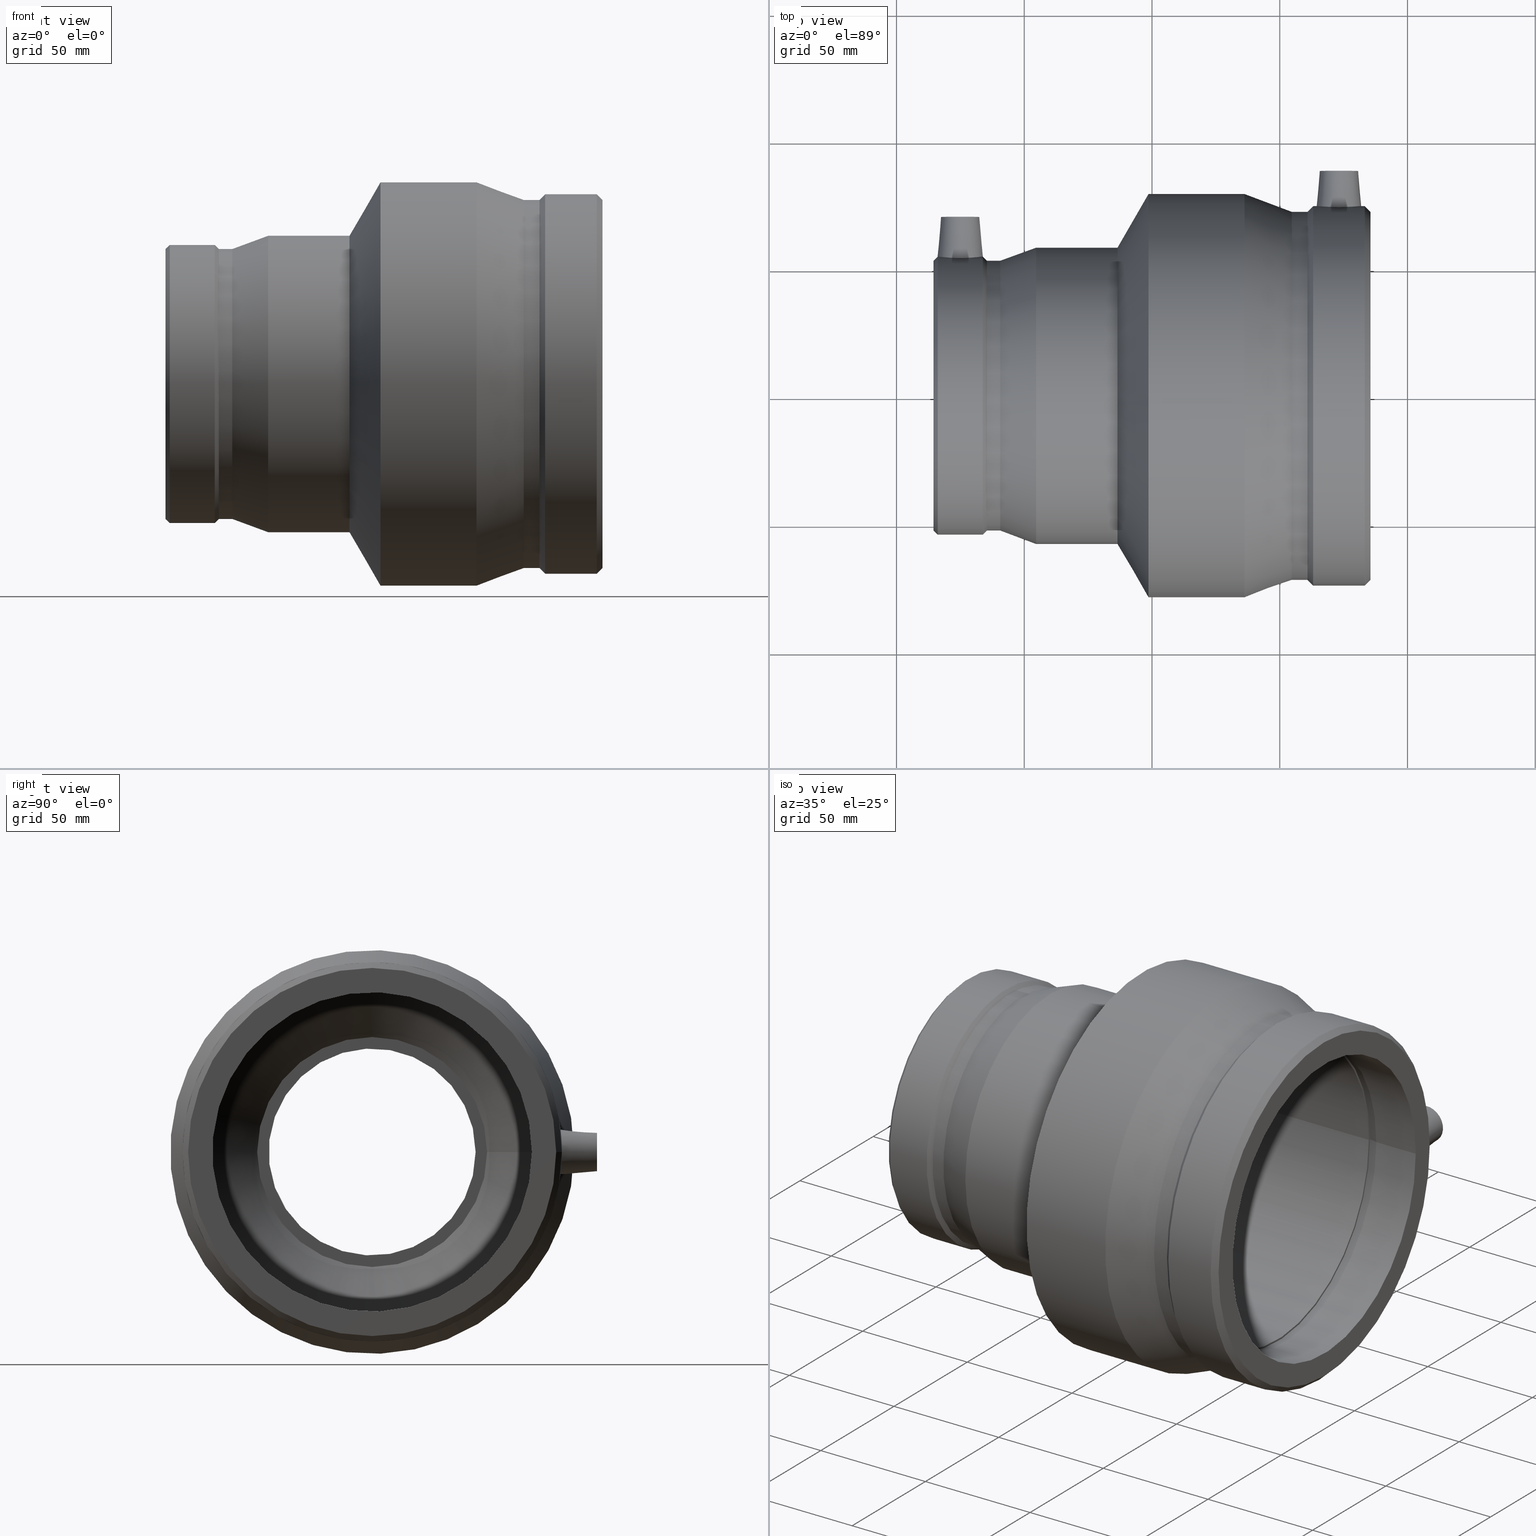
[diagram: canonical four-view strip — front | top / right | iso, engineering-drawing reading convention]
A machine part, canonical four-view strip (front | top / right | iso — engineering-drawing reading convention). The complete STEP part file that produces these views, byte-faithful:
ISO-10303-21;
HEADER;
/* Generated by software containing ST-Developer
 * from STEP Tools, Inc. (www.steptools.com) 
 */

FILE_DESCRIPTION(
/* description */ ('PLASSON REDUCING COUPLER 125-90'),
/* implementation_level */ '2;1');

FILE_NAME(
/* name */ 
'C:\\Dropbox\\KIMPROJECTS-Inventor\\99-16-3568-Processing\\ElectroFusi
on Fittings\\491104\\491104125090.ipt.stp',
/* time_stamp */ '2017-11-06T09:12:43+02:00',
/* author */ ('KIM'),
/* organization */ (''),
/* preprocessor_version */ 'ST-DEVELOPER v15.6',
/* originating_system */ 'Autodesk Inventor 2015',
/* authorisation */ '');

FILE_SCHEMA (('AUTOMOTIVE_DESIGN { 1 0 10303 214 3 1 1 }'));
ENDSEC;

DATA;
#10=MECHANICAL_DESIGN_GEOMETRIC_PRESENTATION_REPRESENTATION('',(#13),#888);
#11=SHAPE_REPRESENTATION_RELATIONSHIP('SRR','None',#897,#12);
#12=ADVANCED_BREP_SHAPE_REPRESENTATION($,(#14),#887);
#13=STYLED_ITEM('',(#906),#14);
#14=MANIFOLD_SOLID_BREP('Solid1',#453);
#15=B_SPLINE_CURVE_WITH_KNOTS('',3,(#706,#707,#708,#709,#710,#711,#712,
#713,#714,#715,#716,#717,#718,#719,#720,#721,#722,#723,#724,#725,#726,#727,
#728,#729,#730,#731,#732,#733,#734,#735,#736,#737,#738,#739),
 .UNSPECIFIED.,.T.,.F.,(4,2,2,2,2,2,2,2,2,2,2,2,2,2,2,2,4),(0.,0.329174991896132,
0.658349983792263,0.987130054518636,1.31591012524501,1.64469019597138,1.97347026669776,
2.30264525859389,2.63182025049002,2.96099524238615,3.29017023428228,3.61895030500865,
3.94773037573503,4.2765104464614,4.60529051718777,4.93446550908391,5.26364050098004),
 .UNSPECIFIED.);
#16=B_SPLINE_CURVE_WITH_KNOTS('',3,(#755,#756,#757,#758,#759,#760),
 .UNSPECIFIED.,.F.,.F.,(4,2,4),(1.69213413303802,1.78559538917749,1.87905664531697),
 .UNSPECIFIED.);
#17=B_SPLINE_CURVE_WITH_KNOTS('',3,(#762,#763,#764,#765,#766,#767,#768,
#769,#770,#771,#772,#773,#774,#775,#776,#777,#778,#779),.UNSPECIFIED.,.F.,
 .F.,(4,2,2,2,2,2,2,2,4),(1.43476741438058,1.67667653360601,2.01178281055401,
2.34746166193501,2.683140513316,3.01881936469699,3.35449821607798,3.68960449302599,
3.9315136122514),.UNSPECIFIED.);
#18=B_SPLINE_CURVE_WITH_KNOTS('',3,(#781,#782,#783,#784,#785,#786),
 .UNSPECIFIED.,.F.,.F.,(4,2,4),(1.69213413303803,1.78559538917748,1.87905664531694),
 .UNSPECIFIED.);
#19=B_SPLINE_CURVE_WITH_KNOTS('',3,(#787,#788,#789,#790,#791,#792,#793,
#794,#795,#796,#797,#798,#799,#800,#801,#802,#803,#804,#805),
 .UNSPECIFIED.,.F.,.F.,(4,2,2,2,3,2,2,2,4),(4.11790792769659,4.359817046922,
4.69492332387001,5.030602175251,5.36628102663199,5.70195987801298,6.03763872939397,
6.37274500634198,6.61465412556741),.UNSPECIFIED.);
#20=CONICAL_SURFACE('',#467,7.5,5.);
#21=CONICAL_SURFACE('',#476,7.5,5.);
#22=CONICAL_SURFACE('',#477,53.7022,45.0000000000002);
#23=CONICAL_SURFACE('',#483,53.7022,45.);
#24=CONICAL_SURFACE('',#488,55.4422,20.);
#25=CONICAL_SURFACE('',#492,68.5,60.0000000000001);
#26=CONICAL_SURFACE('',#496,75.5161,20.6668482190193);
#27=CONICAL_SURFACE('',#500,73.1461,45.);
#28=CONICAL_SURFACE('',#504,73.1461,45.);
#29=CONICAL_SURFACE('',#510,62.882601811006,12.);
#30=CONICAL_SURFACE('',#516,53.75,59.2775890477132);
#31=CONICAL_SURFACE('',#528,45.382601811006,12.);
#32=FACE_BOUND('',#126,.T.);
#33=FACE_BOUND('',#128,.T.);
#34=FACE_BOUND('',#130,.T.);
#35=FACE_BOUND('',#132,.T.);
#36=FACE_BOUND('',#134,.T.);
#37=FACE_BOUND('',#136,.T.);
#38=FACE_BOUND('',#138,.T.);
#39=FACE_BOUND('',#140,.T.);
#40=FACE_BOUND('',#142,.T.);
#41=FACE_BOUND('',#144,.T.);
#42=FACE_BOUND('',#146,.T.);
#43=FACE_BOUND('',#148,.T.);
#44=FACE_BOUND('',#150,.T.);
#45=FACE_BOUND('',#153,.T.);
#46=FACE_BOUND('',#155,.T.);
#47=FACE_BOUND('',#157,.T.);
#48=FACE_BOUND('',#159,.T.);
#49=FACE_BOUND('',#161,.T.);
#50=FACE_BOUND('',#163,.T.);
#51=FACE_BOUND('',#165,.T.);
#52=FACE_BOUND('',#167,.T.);
#53=FACE_BOUND('',#169,.T.);
#54=FACE_BOUND('',#170,.T.);
#55=FACE_BOUND('',#172,.T.);
#56=FACE_BOUND('',#174,.T.);
#57=FACE_BOUND('',#176,.T.);
#58=FACE_BOUND('',#178,.T.);
#59=FACE_BOUND('',#180,.T.);
#60=FACE_BOUND('',#182,.T.);
#61=FACE_BOUND('',#184,.T.);
#62=FACE_BOUND('',#186,.T.);
#63=FACE_BOUND('',#188,.T.);
#64=FACE_BOUND('',#190,.T.);
#65=FACE_BOUND('',#192,.T.);
#66=FACE_BOUND('',#194,.T.);
#67=FACE_BOUND('',#196,.T.);
#68=FACE_BOUND('',#198,.T.);
#69=CYLINDRICAL_SURFACE('',#459,2.);
#70=CYLINDRICAL_SURFACE('',#461,5.);
#71=CYLINDRICAL_SURFACE('',#468,2.);
#72=CYLINDRICAL_SURFACE('',#470,5.);
#73=CYLINDRICAL_SURFACE('',#485,54.52);
#74=CYLINDRICAL_SURFACE('',#486,52.8844);
#75=CYLINDRICAL_SURFACE('',#490,58.);
#76=CYLINDRICAL_SURFACE('',#494,79.);
#77=CYLINDRICAL_SURFACE('',#498,72.0322);
#78=CYLINDRICAL_SURFACE('',#502,74.26);
#79=CYLINDRICAL_SURFACE('',#508,62.5);
#80=CYLINDRICAL_SURFACE('',#514,62.5);
#81=CYLINDRICAL_SURFACE('',#520,40.5);
#82=CYLINDRICAL_SURFACE('',#524,45.);
#83=CYLINDRICAL_SURFACE('',#530,45.);
#84=FACE_OUTER_BOUND('',#123,.T.);
#85=FACE_OUTER_BOUND('',#124,.T.);
#86=FACE_OUTER_BOUND('',#125,.T.);
#87=FACE_OUTER_BOUND('',#127,.T.);
#88=FACE_OUTER_BOUND('',#129,.T.);
#89=FACE_OUTER_BOUND('',#131,.T.);
#90=FACE_OUTER_BOUND('',#133,.T.);
#91=FACE_OUTER_BOUND('',#135,.T.);
#92=FACE_OUTER_BOUND('',#137,.T.);
#93=FACE_OUTER_BOUND('',#139,.T.);
#94=FACE_OUTER_BOUND('',#141,.T.);
#95=FACE_OUTER_BOUND('',#143,.T.);
#96=FACE_OUTER_BOUND('',#145,.T.);
#97=FACE_OUTER_BOUND('',#147,.T.);
#98=FACE_OUTER_BOUND('',#149,.T.);
#99=FACE_OUTER_BOUND('',#151,.T.);
#100=FACE_OUTER_BOUND('',#152,.T.);
#101=FACE_OUTER_BOUND('',#154,.T.);
#102=FACE_OUTER_BOUND('',#156,.T.);
#103=FACE_OUTER_BOUND('',#158,.T.);
#104=FACE_OUTER_BOUND('',#160,.T.);
#105=FACE_OUTER_BOUND('',#162,.T.);
#106=FACE_OUTER_BOUND('',#164,.T.);
#107=FACE_OUTER_BOUND('',#166,.T.);
#108=FACE_OUTER_BOUND('',#168,.T.);
#109=FACE_OUTER_BOUND('',#171,.T.);
#110=FACE_OUTER_BOUND('',#173,.T.);
#111=FACE_OUTER_BOUND('',#175,.T.);
#112=FACE_OUTER_BOUND('',#177,.T.);
#113=FACE_OUTER_BOUND('',#179,.T.);
#114=FACE_OUTER_BOUND('',#181,.T.);
#115=FACE_OUTER_BOUND('',#183,.T.);
#116=FACE_OUTER_BOUND('',#185,.T.);
#117=FACE_OUTER_BOUND('',#187,.T.);
#118=FACE_OUTER_BOUND('',#189,.T.);
#119=FACE_OUTER_BOUND('',#191,.T.);
#120=FACE_OUTER_BOUND('',#193,.T.);
#121=FACE_OUTER_BOUND('',#195,.T.);
#122=FACE_OUTER_BOUND('',#197,.T.);
#123=EDGE_LOOP('',(#318));
#124=EDGE_LOOP('',(#319));
#125=EDGE_LOOP('',(#320));
#126=EDGE_LOOP('',(#321));
#127=EDGE_LOOP('',(#322));
#128=EDGE_LOOP('',(#323));
#129=EDGE_LOOP('',(#324));
#130=EDGE_LOOP('',(#325));
#131=EDGE_LOOP('',(#326));
#132=EDGE_LOOP('',(#327));
#133=EDGE_LOOP('',(#328));
#134=EDGE_LOOP('',(#329));
#135=EDGE_LOOP('',(#330));
#136=EDGE_LOOP('',(#331));
#137=EDGE_LOOP('',(#332));
#138=EDGE_LOOP('',(#333));
#139=EDGE_LOOP('',(#334));
#140=EDGE_LOOP('',(#335));
#141=EDGE_LOOP('',(#336));
#142=EDGE_LOOP('',(#337));
#143=EDGE_LOOP('',(#338));
#144=EDGE_LOOP('',(#339,#340,#341,#342));
#145=EDGE_LOOP('',(#343));
#146=EDGE_LOOP('',(#344,#345));
#147=EDGE_LOOP('',(#346));
#148=EDGE_LOOP('',(#347));
#149=EDGE_LOOP('',(#348,#349));
#150=EDGE_LOOP('',(#350));
#151=EDGE_LOOP('',(#351,#352,#353,#354));
#152=EDGE_LOOP('',(#355));
#153=EDGE_LOOP('',(#356));
#154=EDGE_LOOP('',(#357));
#155=EDGE_LOOP('',(#358));
#156=EDGE_LOOP('',(#359));
#157=EDGE_LOOP('',(#360));
#158=EDGE_LOOP('',(#361));
#159=EDGE_LOOP('',(#362));
#160=EDGE_LOOP('',(#363));
#161=EDGE_LOOP('',(#364));
#162=EDGE_LOOP('',(#365));
#163=EDGE_LOOP('',(#366));
#164=EDGE_LOOP('',(#367));
#165=EDGE_LOOP('',(#368));
#166=EDGE_LOOP('',(#369));
#167=EDGE_LOOP('',(#370));
#168=EDGE_LOOP('',(#371));
#169=EDGE_LOOP('',(#372));
#170=EDGE_LOOP('',(#373));
#171=EDGE_LOOP('',(#374));
#172=EDGE_LOOP('',(#375));
#173=EDGE_LOOP('',(#376));
#174=EDGE_LOOP('',(#377));
#175=EDGE_LOOP('',(#378));
#176=EDGE_LOOP('',(#379));
#177=EDGE_LOOP('',(#380));
#178=EDGE_LOOP('',(#381));
#179=EDGE_LOOP('',(#382));
#180=EDGE_LOOP('',(#383));
#181=EDGE_LOOP('',(#384));
#182=EDGE_LOOP('',(#385));
#183=EDGE_LOOP('',(#386));
#184=EDGE_LOOP('',(#387));
#185=EDGE_LOOP('',(#388));
#186=EDGE_LOOP('',(#389));
#187=EDGE_LOOP('',(#390));
#188=EDGE_LOOP('',(#391));
#189=EDGE_LOOP('',(#392));
#190=EDGE_LOOP('',(#393));
#191=EDGE_LOOP('',(#394));
#192=EDGE_LOOP('',(#395));
#193=EDGE_LOOP('',(#396));
#194=EDGE_LOOP('',(#397));
#195=EDGE_LOOP('',(#398));
#196=EDGE_LOOP('',(#399));
#197=EDGE_LOOP('',(#400));
#198=EDGE_LOOP('',(#401));
#199=CIRCLE('',#456,2.);
#200=CIRCLE('',#458,2.);
#201=CIRCLE('',#460,2.);
#202=CIRCLE('',#462,5.);
#203=CIRCLE('',#463,5.);
#204=CIRCLE('',#466,7.5);
#205=CIRCLE('',#469,2.);
#206=CIRCLE('',#471,5.);
#207=CIRCLE('',#472,5.);
#208=CIRCLE('',#475,7.5);
#209=CIRCLE('',#478,52.8844);
#210=CIRCLE('',#479,54.52);
#211=CIRCLE('',#481,52.8844);
#212=CIRCLE('',#482,45.);
#213=CIRCLE('',#484,54.52);
#214=CIRCLE('',#487,52.8844);
#215=CIRCLE('',#489,58.);
#216=CIRCLE('',#491,58.);
#217=CIRCLE('',#493,79.);
#218=CIRCLE('',#495,79.);
#219=CIRCLE('',#497,72.0322);
#220=CIRCLE('',#499,72.0322);
#221=CIRCLE('',#501,74.26);
#222=CIRCLE('',#503,74.26);
#223=CIRCLE('',#505,72.0322);
#224=CIRCLE('',#507,62.5);
#225=CIRCLE('',#509,62.5);
#226=CIRCLE('',#511,63.2652036220121);
#227=CIRCLE('',#513,62.5);
#228=CIRCLE('',#515,62.5);
#229=CIRCLE('',#517,45.);
#230=CIRCLE('',#519,40.5);
#231=CIRCLE('',#521,40.5);
#232=CIRCLE('',#523,45.);
#233=CIRCLE('',#525,45.);
#234=CIRCLE('',#527,45.7652036220121);
#235=CIRCLE('',#529,45.);
#236=VERTEX_POINT('',#687);
#237=VERTEX_POINT('',#690);
#238=VERTEX_POINT('',#693);
#239=VERTEX_POINT('',#696);
#240=VERTEX_POINT('',#698);
#241=VERTEX_POINT('',#702);
#242=VERTEX_POINT('',#705);
#243=VERTEX_POINT('',#741);
#244=VERTEX_POINT('',#744);
#245=VERTEX_POINT('',#746);
#246=VERTEX_POINT('',#750);
#247=VERTEX_POINT('',#753);
#248=VERTEX_POINT('',#754);
#249=VERTEX_POINT('',#761);
#250=VERTEX_POINT('',#780);
#251=VERTEX_POINT('',#807);
#252=VERTEX_POINT('',#811);
#253=VERTEX_POINT('',#813);
#254=VERTEX_POINT('',#819);
#255=VERTEX_POINT('',#822);
#256=VERTEX_POINT('',#825);
#257=VERTEX_POINT('',#828);
#258=VERTEX_POINT('',#831);
#259=VERTEX_POINT('',#834);
#260=VERTEX_POINT('',#837);
#261=VERTEX_POINT('',#840);
#262=VERTEX_POINT('',#843);
#263=VERTEX_POINT('',#846);
#264=VERTEX_POINT('',#849);
#265=VERTEX_POINT('',#852);
#266=VERTEX_POINT('',#855);
#267=VERTEX_POINT('',#858);
#268=VERTEX_POINT('',#861);
#269=VERTEX_POINT('',#864);
#270=VERTEX_POINT('',#867);
#271=VERTEX_POINT('',#870);
#272=VERTEX_POINT('',#873);
#273=VERTEX_POINT('',#876);
#274=VERTEX_POINT('',#879);
#275=VERTEX_POINT('',#882);
#276=EDGE_CURVE('',#236,#236,#199,.T.);
#277=EDGE_CURVE('',#237,#237,#200,.T.);
#278=EDGE_CURVE('',#238,#238,#201,.T.);
#279=EDGE_CURVE('',#239,#239,#202,.T.);
#280=EDGE_CURVE('',#240,#240,#203,.T.);
#281=EDGE_CURVE('',#241,#241,#204,.T.);
#282=EDGE_CURVE('',#242,#242,#15,.T.);
#283=EDGE_CURVE('',#243,#243,#205,.T.);
#284=EDGE_CURVE('',#244,#244,#206,.T.);
#285=EDGE_CURVE('',#245,#245,#207,.T.);
#286=EDGE_CURVE('',#246,#246,#208,.T.);
#287=EDGE_CURVE('',#247,#248,#16,.T.);
#288=EDGE_CURVE('',#249,#247,#17,.T.);
#289=EDGE_CURVE('',#250,#249,#18,.T.);
#290=EDGE_CURVE('',#248,#250,#19,.T.);
#291=EDGE_CURVE('',#251,#251,#209,.T.);
#292=EDGE_CURVE('',#249,#250,#210,.T.);
#293=EDGE_CURVE('',#252,#252,#211,.T.);
#294=EDGE_CURVE('',#253,#253,#212,.T.);
#295=EDGE_CURVE('',#247,#248,#213,.T.);
#296=EDGE_CURVE('',#254,#254,#214,.T.);
#297=EDGE_CURVE('',#255,#255,#215,.T.);
#298=EDGE_CURVE('',#256,#256,#216,.T.);
#299=EDGE_CURVE('',#257,#257,#217,.T.);
#300=EDGE_CURVE('',#258,#258,#218,.T.);
#301=EDGE_CURVE('',#259,#259,#219,.T.);
#302=EDGE_CURVE('',#260,#260,#220,.T.);
#303=EDGE_CURVE('',#261,#261,#221,.T.);
#304=EDGE_CURVE('',#262,#262,#222,.T.);
#305=EDGE_CURVE('',#263,#263,#223,.T.);
#306=EDGE_CURVE('',#264,#264,#224,.T.);
#307=EDGE_CURVE('',#265,#265,#225,.T.);
#308=EDGE_CURVE('',#266,#266,#226,.T.);
#309=EDGE_CURVE('',#267,#267,#227,.T.);
#310=EDGE_CURVE('',#268,#268,#228,.T.);
#311=EDGE_CURVE('',#269,#269,#229,.T.);
#312=EDGE_CURVE('',#270,#270,#230,.T.);
#313=EDGE_CURVE('',#271,#271,#231,.T.);
#314=EDGE_CURVE('',#272,#272,#232,.T.);
#315=EDGE_CURVE('',#273,#273,#233,.T.);
#316=EDGE_CURVE('',#274,#274,#234,.T.);
#317=EDGE_CURVE('',#275,#275,#235,.T.);
#318=ORIENTED_EDGE('',*,*,#276,.F.);
#319=ORIENTED_EDGE('',*,*,#277,.F.);
#320=ORIENTED_EDGE('',*,*,#276,.T.);
#321=ORIENTED_EDGE('',*,*,#278,.T.);
#322=ORIENTED_EDGE('',*,*,#279,.T.);
#323=ORIENTED_EDGE('',*,*,#280,.F.);
#324=ORIENTED_EDGE('',*,*,#279,.F.);
#325=ORIENTED_EDGE('',*,*,#278,.F.);
#326=ORIENTED_EDGE('',*,*,#281,.F.);
#327=ORIENTED_EDGE('',*,*,#280,.T.);
#328=ORIENTED_EDGE('',*,*,#281,.T.);
#329=ORIENTED_EDGE('',*,*,#282,.F.);
#330=ORIENTED_EDGE('',*,*,#277,.T.);
#331=ORIENTED_EDGE('',*,*,#283,.T.);
#332=ORIENTED_EDGE('',*,*,#284,.T.);
#333=ORIENTED_EDGE('',*,*,#285,.F.);
#334=ORIENTED_EDGE('',*,*,#284,.F.);
#335=ORIENTED_EDGE('',*,*,#283,.F.);
#336=ORIENTED_EDGE('',*,*,#286,.F.);
#337=ORIENTED_EDGE('',*,*,#285,.T.);
#338=ORIENTED_EDGE('',*,*,#286,.T.);
#339=ORIENTED_EDGE('',*,*,#287,.F.);
#340=ORIENTED_EDGE('',*,*,#288,.F.);
#341=ORIENTED_EDGE('',*,*,#289,.F.);
#342=ORIENTED_EDGE('',*,*,#290,.F.);
#343=ORIENTED_EDGE('',*,*,#291,.F.);
#344=ORIENTED_EDGE('',*,*,#289,.T.);
#345=ORIENTED_EDGE('',*,*,#292,.T.);
#346=ORIENTED_EDGE('',*,*,#293,.F.);
#347=ORIENTED_EDGE('',*,*,#294,.T.);
#348=ORIENTED_EDGE('',*,*,#287,.T.);
#349=ORIENTED_EDGE('',*,*,#295,.F.);
#350=ORIENTED_EDGE('',*,*,#293,.T.);
#351=ORIENTED_EDGE('',*,*,#290,.T.);
#352=ORIENTED_EDGE('',*,*,#292,.F.);
#353=ORIENTED_EDGE('',*,*,#288,.T.);
#354=ORIENTED_EDGE('',*,*,#295,.T.);
#355=ORIENTED_EDGE('',*,*,#291,.T.);
#356=ORIENTED_EDGE('',*,*,#296,.F.);
#357=ORIENTED_EDGE('',*,*,#296,.T.);
#358=ORIENTED_EDGE('',*,*,#297,.F.);
#359=ORIENTED_EDGE('',*,*,#297,.T.);
#360=ORIENTED_EDGE('',*,*,#298,.F.);
#361=ORIENTED_EDGE('',*,*,#298,.T.);
#362=ORIENTED_EDGE('',*,*,#299,.F.);
#363=ORIENTED_EDGE('',*,*,#299,.T.);
#364=ORIENTED_EDGE('',*,*,#300,.F.);
#365=ORIENTED_EDGE('',*,*,#300,.T.);
#366=ORIENTED_EDGE('',*,*,#301,.F.);
#367=ORIENTED_EDGE('',*,*,#301,.T.);
#368=ORIENTED_EDGE('',*,*,#302,.F.);
#369=ORIENTED_EDGE('',*,*,#302,.T.);
#370=ORIENTED_EDGE('',*,*,#303,.F.);
#371=ORIENTED_EDGE('',*,*,#303,.T.);
#372=ORIENTED_EDGE('',*,*,#282,.T.);
#373=ORIENTED_EDGE('',*,*,#304,.F.);
#374=ORIENTED_EDGE('',*,*,#304,.T.);
#375=ORIENTED_EDGE('',*,*,#305,.F.);
#376=ORIENTED_EDGE('',*,*,#305,.T.);
#377=ORIENTED_EDGE('',*,*,#306,.F.);
#378=ORIENTED_EDGE('',*,*,#306,.T.);
#379=ORIENTED_EDGE('',*,*,#307,.F.);
#380=ORIENTED_EDGE('',*,*,#307,.T.);
#381=ORIENTED_EDGE('',*,*,#308,.F.);
#382=ORIENTED_EDGE('',*,*,#308,.T.);
#383=ORIENTED_EDGE('',*,*,#309,.F.);
#384=ORIENTED_EDGE('',*,*,#309,.T.);
#385=ORIENTED_EDGE('',*,*,#310,.F.);
#386=ORIENTED_EDGE('',*,*,#310,.T.);
#387=ORIENTED_EDGE('',*,*,#311,.F.);
#388=ORIENTED_EDGE('',*,*,#311,.T.);
#389=ORIENTED_EDGE('',*,*,#312,.F.);
#390=ORIENTED_EDGE('',*,*,#312,.T.);
#391=ORIENTED_EDGE('',*,*,#313,.F.);
#392=ORIENTED_EDGE('',*,*,#314,.F.);
#393=ORIENTED_EDGE('',*,*,#313,.T.);
#394=ORIENTED_EDGE('',*,*,#314,.T.);
#395=ORIENTED_EDGE('',*,*,#315,.F.);
#396=ORIENTED_EDGE('',*,*,#316,.F.);
#397=ORIENTED_EDGE('',*,*,#315,.T.);
#398=ORIENTED_EDGE('',*,*,#316,.T.);
#399=ORIENTED_EDGE('',*,*,#317,.F.);
#400=ORIENTED_EDGE('',*,*,#317,.T.);
#401=ORIENTED_EDGE('',*,*,#294,.F.);
#402=PLANE('',#455);
#403=PLANE('',#457);
#404=PLANE('',#464);
#405=PLANE('',#465);
#406=PLANE('',#473);
#407=PLANE('',#474);
#408=PLANE('',#480);
#409=PLANE('',#506);
#410=PLANE('',#512);
#411=PLANE('',#518);
#412=PLANE('',#522);
#413=PLANE('',#526);
#414=ADVANCED_FACE('',(#84),#402,.T.);
#415=ADVANCED_FACE('',(#85),#403,.T.);
#416=ADVANCED_FACE('',(#86,#32),#69,.T.);
#417=ADVANCED_FACE('',(#87,#33),#70,.F.);
#418=ADVANCED_FACE('',(#88,#34),#404,.T.);
#419=ADVANCED_FACE('',(#89,#35),#405,.T.);
#420=ADVANCED_FACE('',(#90,#36),#20,.T.);
#421=ADVANCED_FACE('',(#91,#37),#71,.T.);
#422=ADVANCED_FACE('',(#92,#38),#72,.F.);
#423=ADVANCED_FACE('',(#93,#39),#406,.T.);
#424=ADVANCED_FACE('',(#94,#40),#407,.T.);
#425=ADVANCED_FACE('',(#95,#41),#21,.T.);
#426=ADVANCED_FACE('',(#96,#42),#22,.T.);
#427=ADVANCED_FACE('',(#97,#43),#408,.T.);
#428=ADVANCED_FACE('',(#98,#44),#23,.T.);
#429=ADVANCED_FACE('',(#99),#73,.T.);
#430=ADVANCED_FACE('',(#100,#45),#74,.T.);
#431=ADVANCED_FACE('',(#101,#46),#24,.T.);
#432=ADVANCED_FACE('',(#102,#47),#75,.T.);
#433=ADVANCED_FACE('',(#103,#48),#25,.T.);
#434=ADVANCED_FACE('',(#104,#49),#76,.T.);
#435=ADVANCED_FACE('',(#105,#50),#26,.T.);
#436=ADVANCED_FACE('',(#106,#51),#77,.T.);
#437=ADVANCED_FACE('',(#107,#52),#27,.T.);
#438=ADVANCED_FACE('',(#108,#53,#54),#78,.T.);
#439=ADVANCED_FACE('',(#109,#55),#28,.T.);
#440=ADVANCED_FACE('',(#110,#56),#409,.T.);
#441=ADVANCED_FACE('',(#111,#57),#79,.F.);
#442=ADVANCED_FACE('',(#112,#58),#29,.F.);
#443=ADVANCED_FACE('',(#113,#59),#410,.T.);
#444=ADVANCED_FACE('',(#114,#60),#80,.F.);
#445=ADVANCED_FACE('',(#115,#61),#30,.F.);
#446=ADVANCED_FACE('',(#116,#62),#411,.T.);
#447=ADVANCED_FACE('',(#117,#63),#81,.F.);
#448=ADVANCED_FACE('',(#118,#64),#412,.T.);
#449=ADVANCED_FACE('',(#119,#65),#82,.F.);
#450=ADVANCED_FACE('',(#120,#66),#413,.T.);
#451=ADVANCED_FACE('',(#121,#67),#31,.F.);
#452=ADVANCED_FACE('',(#122,#68),#83,.F.);
#453=CLOSED_SHELL('',(#414,#415,#416,#417,#418,#419,#420,#421,#422,#423,
#424,#425,#426,#427,#428,#429,#430,#431,#432,#433,#434,#435,#436,#437,#438,
#439,#440,#441,#442,#443,#444,#445,#446,#447,#448,#449,#450,#451,#452));
#454=AXIS2_PLACEMENT_3D('placement',#685,#531,#532);
#455=AXIS2_PLACEMENT_3D('',#686,#533,#534);
#456=AXIS2_PLACEMENT_3D('',#688,#535,#536);
#457=AXIS2_PLACEMENT_3D('',#689,#537,#538);
#458=AXIS2_PLACEMENT_3D('',#691,#539,#540);
#459=AXIS2_PLACEMENT_3D('',#692,#541,#542);
#460=AXIS2_PLACEMENT_3D('',#694,#543,#544);
#461=AXIS2_PLACEMENT_3D('',#695,#545,#546);
#462=AXIS2_PLACEMENT_3D('',#697,#547,#548);
#463=AXIS2_PLACEMENT_3D('',#699,#549,#550);
#464=AXIS2_PLACEMENT_3D('',#700,#551,#552);
#465=AXIS2_PLACEMENT_3D('',#701,#553,#554);
#466=AXIS2_PLACEMENT_3D('',#703,#555,#556);
#467=AXIS2_PLACEMENT_3D('',#704,#557,#558);
#468=AXIS2_PLACEMENT_3D('',#740,#559,#560);
#469=AXIS2_PLACEMENT_3D('',#742,#561,#562);
#470=AXIS2_PLACEMENT_3D('',#743,#563,#564);
#471=AXIS2_PLACEMENT_3D('',#745,#565,#566);
#472=AXIS2_PLACEMENT_3D('',#747,#567,#568);
#473=AXIS2_PLACEMENT_3D('',#748,#569,#570);
#474=AXIS2_PLACEMENT_3D('',#749,#571,#572);
#475=AXIS2_PLACEMENT_3D('',#751,#573,#574);
#476=AXIS2_PLACEMENT_3D('',#752,#575,#576);
#477=AXIS2_PLACEMENT_3D('',#806,#577,#578);
#478=AXIS2_PLACEMENT_3D('',#808,#579,#580);
#479=AXIS2_PLACEMENT_3D('',#809,#581,#582);
#480=AXIS2_PLACEMENT_3D('',#810,#583,#584);
#481=AXIS2_PLACEMENT_3D('',#812,#585,#586);
#482=AXIS2_PLACEMENT_3D('',#814,#587,#588);
#483=AXIS2_PLACEMENT_3D('',#815,#589,#590);
#484=AXIS2_PLACEMENT_3D('',#816,#591,#592);
#485=AXIS2_PLACEMENT_3D('',#817,#593,#594);
#486=AXIS2_PLACEMENT_3D('',#818,#595,#596);
#487=AXIS2_PLACEMENT_3D('',#820,#597,#598);
#488=AXIS2_PLACEMENT_3D('',#821,#599,#600);
#489=AXIS2_PLACEMENT_3D('',#823,#601,#602);
#490=AXIS2_PLACEMENT_3D('',#824,#603,#604);
#491=AXIS2_PLACEMENT_3D('',#826,#605,#606);
#492=AXIS2_PLACEMENT_3D('',#827,#607,#608);
#493=AXIS2_PLACEMENT_3D('',#829,#609,#610);
#494=AXIS2_PLACEMENT_3D('',#830,#611,#612);
#495=AXIS2_PLACEMENT_3D('',#832,#613,#614);
#496=AXIS2_PLACEMENT_3D('',#833,#615,#616);
#497=AXIS2_PLACEMENT_3D('',#835,#617,#618);
#498=AXIS2_PLACEMENT_3D('',#836,#619,#620);
#499=AXIS2_PLACEMENT_3D('',#838,#621,#622);
#500=AXIS2_PLACEMENT_3D('',#839,#623,#624);
#501=AXIS2_PLACEMENT_3D('',#841,#625,#626);
#502=AXIS2_PLACEMENT_3D('',#842,#627,#628);
#503=AXIS2_PLACEMENT_3D('',#844,#629,#630);
#504=AXIS2_PLACEMENT_3D('',#845,#631,#632);
#505=AXIS2_PLACEMENT_3D('',#847,#633,#634);
#506=AXIS2_PLACEMENT_3D('',#848,#635,#636);
#507=AXIS2_PLACEMENT_3D('',#850,#637,#638);
#508=AXIS2_PLACEMENT_3D('',#851,#639,#640);
#509=AXIS2_PLACEMENT_3D('',#853,#641,#642);
#510=AXIS2_PLACEMENT_3D('',#854,#643,#644);
#511=AXIS2_PLACEMENT_3D('',#856,#645,#646);
#512=AXIS2_PLACEMENT_3D('',#857,#647,#648);
#513=AXIS2_PLACEMENT_3D('',#859,#649,#650);
#514=AXIS2_PLACEMENT_3D('',#860,#651,#652);
#515=AXIS2_PLACEMENT_3D('',#862,#653,#654);
#516=AXIS2_PLACEMENT_3D('',#863,#655,#656);
#517=AXIS2_PLACEMENT_3D('',#865,#657,#658);
#518=AXIS2_PLACEMENT_3D('',#866,#659,#660);
#519=AXIS2_PLACEMENT_3D('',#868,#661,#662);
#520=AXIS2_PLACEMENT_3D('',#869,#663,#664);
#521=AXIS2_PLACEMENT_3D('',#871,#665,#666);
#522=AXIS2_PLACEMENT_3D('',#872,#667,#668);
#523=AXIS2_PLACEMENT_3D('',#874,#669,#670);
#524=AXIS2_PLACEMENT_3D('',#875,#671,#672);
#525=AXIS2_PLACEMENT_3D('',#877,#673,#674);
#526=AXIS2_PLACEMENT_3D('',#878,#675,#676);
#527=AXIS2_PLACEMENT_3D('',#880,#677,#678);
#528=AXIS2_PLACEMENT_3D('',#881,#679,#680);
#529=AXIS2_PLACEMENT_3D('',#883,#681,#682);
#530=AXIS2_PLACEMENT_3D('',#884,#683,#684);
#531=DIRECTION('axis',(0.,0.,1.));
#532=DIRECTION('refdir',(1.,0.,0.));
#533=DIRECTION('center_axis',(0.,1.,0.));
#534=DIRECTION('ref_axis',(0.,0.,1.));
#535=DIRECTION('center_axis',(0.,-1.,0.));
#536=DIRECTION('ref_axis',(-1.,0.,0.));
#537=DIRECTION('center_axis',(0.,1.,0.));
#538=DIRECTION('ref_axis',(0.,0.,1.));
#539=DIRECTION('center_axis',(0.,-1.,0.));
#540=DIRECTION('ref_axis',(-1.,0.,0.));
#541=DIRECTION('center_axis',(0.,-1.,0.));
#542=DIRECTION('ref_axis',(-1.,0.,0.));
#543=DIRECTION('center_axis',(0.,1.,0.));
#544=DIRECTION('ref_axis',(-1.,0.,0.));
#545=DIRECTION('center_axis',(0.,-1.,0.));
#546=DIRECTION('ref_axis',(-1.,0.,0.));
#547=DIRECTION('center_axis',(0.,-1.,0.));
#548=DIRECTION('ref_axis',(-1.,0.,0.));
#549=DIRECTION('center_axis',(0.,-1.,0.));
#550=DIRECTION('ref_axis',(-1.,0.,0.));
#551=DIRECTION('center_axis',(0.,1.,0.));
#552=DIRECTION('ref_axis',(0.,0.,1.));
#553=DIRECTION('center_axis',(0.,1.,0.));
#554=DIRECTION('ref_axis',(0.,0.,1.));
#555=DIRECTION('center_axis',(0.,-1.,0.));
#556=DIRECTION('ref_axis',(1.,0.,0.));
#557=DIRECTION('center_axis',(0.,-1.,0.));
#558=DIRECTION('ref_axis',(1.,0.,0.));
#559=DIRECTION('center_axis',(0.,-1.,0.));
#560=DIRECTION('ref_axis',(-1.,0.,0.));
#561=DIRECTION('center_axis',(0.,1.,0.));
#562=DIRECTION('ref_axis',(-1.,0.,0.));
#563=DIRECTION('center_axis',(0.,-1.,0.));
#564=DIRECTION('ref_axis',(-1.,0.,0.));
#565=DIRECTION('center_axis',(0.,-1.,0.));
#566=DIRECTION('ref_axis',(-1.,0.,0.));
#567=DIRECTION('center_axis',(0.,-1.,0.));
#568=DIRECTION('ref_axis',(-1.,0.,0.));
#569=DIRECTION('center_axis',(0.,1.,0.));
#570=DIRECTION('ref_axis',(0.,0.,1.));
#571=DIRECTION('center_axis',(0.,1.,0.));
#572=DIRECTION('ref_axis',(0.,0.,1.));
#573=DIRECTION('center_axis',(0.,-1.,0.));
#574=DIRECTION('ref_axis',(1.,0.,0.));
#575=DIRECTION('center_axis',(0.,-1.,0.));
#576=DIRECTION('ref_axis',(1.,0.,0.));
#577=DIRECTION('center_axis',(-1.,0.,0.));
#578=DIRECTION('ref_axis',(0.,1.,0.));
#579=DIRECTION('center_axis',(1.,0.,0.));
#580=DIRECTION('ref_axis',(0.,0.,-1.));
#581=DIRECTION('center_axis',(1.,0.,0.));
#582=DIRECTION('ref_axis',(0.,0.,-1.));
#583=DIRECTION('center_axis',(-1.,0.,0.));
#584=DIRECTION('ref_axis',(0.,0.,1.));
#585=DIRECTION('center_axis',(1.,0.,0.));
#586=DIRECTION('ref_axis',(0.,0.,-1.));
#587=DIRECTION('center_axis',(1.,0.,0.));
#588=DIRECTION('ref_axis',(0.,0.,-1.));
#589=DIRECTION('center_axis',(1.,0.,0.));
#590=DIRECTION('ref_axis',(0.,1.,0.));
#591=DIRECTION('center_axis',(1.,0.,0.));
#592=DIRECTION('ref_axis',(0.,0.,-1.));
#593=DIRECTION('center_axis',(1.,0.,0.));
#594=DIRECTION('ref_axis',(0.,1.,0.));
#595=DIRECTION('center_axis',(1.,0.,0.));
#596=DIRECTION('ref_axis',(0.,1.,0.));
#597=DIRECTION('center_axis',(1.,0.,0.));
#598=DIRECTION('ref_axis',(0.,0.,-1.));
#599=DIRECTION('center_axis',(1.,0.,0.));
#600=DIRECTION('ref_axis',(0.,1.,0.));
#601=DIRECTION('center_axis',(1.,0.,0.));
#602=DIRECTION('ref_axis',(0.,0.,-1.));
#603=DIRECTION('center_axis',(1.,0.,0.));
#604=DIRECTION('ref_axis',(0.,1.,0.));
#605=DIRECTION('center_axis',(1.,0.,0.));
#606=DIRECTION('ref_axis',(0.,0.,-1.));
#607=DIRECTION('center_axis',(1.,0.,0.));
#608=DIRECTION('ref_axis',(0.,1.,0.));
#609=DIRECTION('center_axis',(1.,0.,0.));
#610=DIRECTION('ref_axis',(0.,0.,-1.));
#611=DIRECTION('center_axis',(1.,0.,0.));
#612=DIRECTION('ref_axis',(0.,1.,0.));
#613=DIRECTION('center_axis',(1.,0.,0.));
#614=DIRECTION('ref_axis',(0.,0.,-1.));
#615=DIRECTION('center_axis',(-1.,0.,0.));
#616=DIRECTION('ref_axis',(0.,1.,0.));
#617=DIRECTION('center_axis',(1.,0.,0.));
#618=DIRECTION('ref_axis',(0.,0.,-1.));
#619=DIRECTION('center_axis',(1.,0.,0.));
#620=DIRECTION('ref_axis',(0.,1.,0.));
#621=DIRECTION('center_axis',(1.,0.,0.));
#622=DIRECTION('ref_axis',(0.,0.,-1.));
#623=DIRECTION('center_axis',(1.,0.,0.));
#624=DIRECTION('ref_axis',(0.,1.,0.));
#625=DIRECTION('center_axis',(1.,0.,0.));
#626=DIRECTION('ref_axis',(0.,0.,-1.));
#627=DIRECTION('center_axis',(1.,0.,0.));
#628=DIRECTION('ref_axis',(0.,1.,0.));
#629=DIRECTION('center_axis',(1.,0.,0.));
#630=DIRECTION('ref_axis',(0.,0.,-1.));
#631=DIRECTION('center_axis',(-1.,0.,0.));
#632=DIRECTION('ref_axis',(0.,1.,0.));
#633=DIRECTION('center_axis',(1.,0.,0.));
#634=DIRECTION('ref_axis',(0.,0.,-1.));
#635=DIRECTION('center_axis',(1.,0.,0.));
#636=DIRECTION('ref_axis',(0.,0.,-1.));
#637=DIRECTION('center_axis',(1.,0.,0.));
#638=DIRECTION('ref_axis',(0.,0.,-1.));
#639=DIRECTION('center_axis',(1.,0.,0.));
#640=DIRECTION('ref_axis',(0.,1.,0.));
#641=DIRECTION('center_axis',(1.,0.,0.));
#642=DIRECTION('ref_axis',(0.,0.,-1.));
#643=DIRECTION('center_axis',(-1.,0.,0.));
#644=DIRECTION('ref_axis',(0.,1.,0.));
#645=DIRECTION('center_axis',(1.,0.,0.));
#646=DIRECTION('ref_axis',(0.,0.,-1.));
#647=DIRECTION('center_axis',(1.,0.,0.));
#648=DIRECTION('ref_axis',(0.,0.,-1.));
#649=DIRECTION('center_axis',(1.,0.,0.));
#650=DIRECTION('ref_axis',(0.,0.,-1.));
#651=DIRECTION('center_axis',(1.,0.,0.));
#652=DIRECTION('ref_axis',(0.,1.,0.));
#653=DIRECTION('center_axis',(1.,0.,0.));
#654=DIRECTION('ref_axis',(0.,0.,-1.));
#655=DIRECTION('center_axis',(1.,0.,0.));
#656=DIRECTION('ref_axis',(0.,1.,0.));
#657=DIRECTION('center_axis',(1.,0.,0.));
#658=DIRECTION('ref_axis',(0.,0.,-1.));
#659=DIRECTION('center_axis',(1.,0.,0.));
#660=DIRECTION('ref_axis',(0.,0.,-1.));
#661=DIRECTION('center_axis',(1.,0.,0.));
#662=DIRECTION('ref_axis',(0.,0.,-1.));
#663=DIRECTION('center_axis',(1.,0.,0.));
#664=DIRECTION('ref_axis',(0.,1.,0.));
#665=DIRECTION('center_axis',(1.,0.,0.));
#666=DIRECTION('ref_axis',(0.,0.,-1.));
#667=DIRECTION('center_axis',(-1.,0.,0.));
#668=DIRECTION('ref_axis',(0.,0.,1.));
#669=DIRECTION('center_axis',(1.,0.,0.));
#670=DIRECTION('ref_axis',(0.,0.,-1.));
#671=DIRECTION('center_axis',(1.,0.,0.));
#672=DIRECTION('ref_axis',(0.,1.,0.));
#673=DIRECTION('center_axis',(1.,0.,0.));
#674=DIRECTION('ref_axis',(0.,0.,-1.));
#675=DIRECTION('center_axis',(-1.,0.,0.));
#676=DIRECTION('ref_axis',(0.,0.,1.));
#677=DIRECTION('center_axis',(1.,0.,0.));
#678=DIRECTION('ref_axis',(0.,0.,-1.));
#679=DIRECTION('center_axis',(1.,0.,0.));
#680=DIRECTION('ref_axis',(0.,1.,0.));
#681=DIRECTION('center_axis',(1.,0.,0.));
#682=DIRECTION('ref_axis',(0.,0.,-1.));
#683=DIRECTION('center_axis',(1.,0.,0.));
#684=DIRECTION('ref_axis',(0.,1.,0.));
#685=CARTESIAN_POINT('',(0.,0.,0.));
#686=CARTESIAN_POINT('Origin',(73.175,85.,0.));
#687=CARTESIAN_POINT('',(75.175,85.,-2.44929359829471E-16));
#688=CARTESIAN_POINT('Origin',(73.175,85.,0.));
#689=CARTESIAN_POINT('Origin',(-75.06,67.,0.));
#690=CARTESIAN_POINT('',(-73.06,67.,-2.44929359829471E-16));
#691=CARTESIAN_POINT('Origin',(-75.06,67.,0.));
#692=CARTESIAN_POINT('Origin',(73.175,88.,0.));
#693=CARTESIAN_POINT('',(75.175,74.,-2.44929359829471E-16));
#694=CARTESIAN_POINT('Origin',(73.175,74.,0.));
#695=CARTESIAN_POINT('Origin',(73.175,88.,0.));
#696=CARTESIAN_POINT('',(78.175,74.,-6.12323399573677E-16));
#697=CARTESIAN_POINT('Origin',(73.175,74.,0.));
#698=CARTESIAN_POINT('',(78.175,88.,-6.12323399573677E-16));
#699=CARTESIAN_POINT('Origin',(73.175,88.,0.));
#700=CARTESIAN_POINT('Origin',(73.175,74.,-9.25185853854297E-17));
#701=CARTESIAN_POINT('Origin',(73.175,88.,1.2335811384724E-16));
#702=CARTESIAN_POINT('',(65.675,88.,9.18485099360515E-16));
#703=CARTESIAN_POINT('Origin',(73.175,88.,0.));
#704=CARTESIAN_POINT('Origin',(73.175,88.,0.));
#705=CARTESIAN_POINT('',(73.175,73.7430126135836,-8.74732477234353));
#706=CARTESIAN_POINT('Ctrl Pts',(73.175,73.7430126135836,-8.74732477234353));
#707=CARTESIAN_POINT('Ctrl Pts',(74.2722499729871,73.7430126135836,-8.74732477234353));
#708=CARTESIAN_POINT('Ctrl Pts',(75.4412476545416,73.7703153832784,-8.52594702412124));
#709=CARTESIAN_POINT('Ctrl Pts',(77.5884027008411,73.8684763735224,-7.62885314771746));
#710=CARTESIAN_POINT('Ctrl Pts',(78.5666649247249,73.9378745493633,-6.95322883510433));
#711=CARTESIAN_POINT('Ctrl Pts',(80.1083003148371,74.0675998765401,-5.39869169734548));
#712=CARTESIAN_POINT('Ctrl Pts',(80.7752863093855,74.1363877547324,-4.4162230965667));
#713=CARTESIAN_POINT('Ctrl Pts',(81.659696667975,74.2332629949682,-2.26487983722118));
#714=CARTESIAN_POINT('Ctrl Pts',(81.8770942368462,74.26,-1.09593356908791));
#715=CARTESIAN_POINT('Ctrl Pts',(81.8770942368462,74.26,1.09593356908791));
#716=CARTESIAN_POINT('Ctrl Pts',(81.659696667975,74.2332629949682,2.26487983722118));
#717=CARTESIAN_POINT('Ctrl Pts',(80.7752863093855,74.1363877547324,4.4162230965667));
#718=CARTESIAN_POINT('Ctrl Pts',(80.1083003148371,74.0675998765401,5.39869169734548));
#719=CARTESIAN_POINT('Ctrl Pts',(78.5666649247249,73.9378745493633,6.95322883510433));
#720=CARTESIAN_POINT('Ctrl Pts',(77.5884027008411,73.8684763735224,7.62885314771746));
#721=CARTESIAN_POINT('Ctrl Pts',(75.4412476545416,73.7703153832784,8.52594702412124));
#722=CARTESIAN_POINT('Ctrl Pts',(74.2722499729871,73.7430126135836,8.74732477234353));
#723=CARTESIAN_POINT('Ctrl Pts',(72.0777500270129,73.7430126135836,8.74732477234353));
#724=CARTESIAN_POINT('Ctrl Pts',(70.9087523454584,73.7703153832784,8.52594702412124));
#725=CARTESIAN_POINT('Ctrl Pts',(68.761597299159,73.8684763735224,7.62885314771746));
#726=CARTESIAN_POINT('Ctrl Pts',(67.7833350752751,73.9378745493633,6.95322883510433));
#727=CARTESIAN_POINT('Ctrl Pts',(66.241699685163,74.0675998765401,5.39869169734548));
#728=CARTESIAN_POINT('Ctrl Pts',(65.5747136906146,74.1363877547324,4.4162230965667));
#729=CARTESIAN_POINT('Ctrl Pts',(64.690303332025,74.2332629949682,2.26487983722117));
#730=CARTESIAN_POINT('Ctrl Pts',(64.4729057631538,74.26,1.09593356908791));
#731=CARTESIAN_POINT('Ctrl Pts',(64.4729057631538,74.26,-1.09593356908791));
#732=CARTESIAN_POINT('Ctrl Pts',(64.690303332025,74.2332629949682,-2.26487983722116));
#733=CARTESIAN_POINT('Ctrl Pts',(65.5747136906146,74.1363877547324,-4.41622309656669));
#734=CARTESIAN_POINT('Ctrl Pts',(66.241699685163,74.0675998765401,-5.39869169734548));
#735=CARTESIAN_POINT('Ctrl Pts',(67.7833350752751,73.9378745493633,-6.95322883510433));
#736=CARTESIAN_POINT('Ctrl Pts',(68.761597299159,73.8684763735224,-7.62885314771746));
#737=CARTESIAN_POINT('Ctrl Pts',(70.9087523454584,73.7703153832784,-8.52594702412124));
#738=CARTESIAN_POINT('Ctrl Pts',(72.0777500270129,73.7430126135836,-8.74732477234353));
#739=CARTESIAN_POINT('Ctrl Pts',(73.175,73.7430126135836,-8.74732477234353));
#740=CARTESIAN_POINT('Origin',(-75.06,70.,0.));
#741=CARTESIAN_POINT('',(-73.06,56.,-2.44929359829471E-16));
#742=CARTESIAN_POINT('Origin',(-75.06,56.,0.));
#743=CARTESIAN_POINT('Origin',(-75.06,70.,0.));
#744=CARTESIAN_POINT('',(-70.06,56.,-6.12323399573677E-16));
#745=CARTESIAN_POINT('Origin',(-75.06,56.,0.));
#746=CARTESIAN_POINT('',(-70.06,70.,-6.12323399573677E-16));
#747=CARTESIAN_POINT('Origin',(-75.06,70.,0.));
#748=CARTESIAN_POINT('Origin',(-75.06,56.,-9.25185853854297E-17));
#749=CARTESIAN_POINT('Origin',(-75.06,70.,1.2335811384724E-16));
#750=CARTESIAN_POINT('',(-82.56,70.,9.18485099360515E-16));
#751=CARTESIAN_POINT('Origin',(-75.06,70.,0.));
#752=CARTESIAN_POINT('Origin',(-75.06,70.,0.));
#753=CARTESIAN_POINT('',(-83.8644,54.5117976993819,0.945680486033814));
#754=CARTESIAN_POINT('',(-83.8644,54.5117976993819,-0.945680486033814));
#755=CARTESIAN_POINT('Ctrl Pts',(-83.8644,54.5117976993819,0.945680486033813));
#756=CARTESIAN_POINT('Ctrl Pts',(-83.9012146524102,54.4804784713135,0.628588794639262));
#757=CARTESIAN_POINT('Ctrl Pts',(-83.9191111135892,54.4652888864108,0.311537520464915));
#758=CARTESIAN_POINT('Ctrl Pts',(-83.9191111135892,54.4652888864108,-0.311537520464913));
#759=CARTESIAN_POINT('Ctrl Pts',(-83.9012146524102,54.4804784713135,-0.628588794639262));
#760=CARTESIAN_POINT('Ctrl Pts',(-83.8644,54.5117976993819,-0.945680486033813));
#761=CARTESIAN_POINT('',(-66.2556,54.5117976993819,0.945680486033646));
#762=CARTESIAN_POINT('Ctrl Pts',(-66.2556,54.5117976993819,0.945680486033643));
#763=CARTESIAN_POINT('Ctrl Pts',(-66.3431466188089,54.4974538715556,1.77250080457224));
#764=CARTESIAN_POINT('Ctrl Pts',(-66.5516931935151,54.4631227667539,2.61284181060128));
#765=CARTESIAN_POINT('Ctrl Pts',(-67.3253524175169,54.3450800871645,4.49981194840563));
#766=CARTESIAN_POINT('Ctrl Pts',(-68.0028384109613,54.247658501117,5.50065899182768));
#767=CARTESIAN_POINT('Ctrl Pts',(-69.569338225432,54.0635173303463,7.08547591371657));
#768=CARTESIAN_POINT('Ctrl Pts',(-70.5642030247082,53.9647238539981,7.77521274572066));
#769=CARTESIAN_POINT('Ctrl Pts',(-72.7499668490814,53.8246894453964,8.69184468942288));
#770=CARTESIAN_POINT('Ctrl Pts',(-73.9410704953967,53.7855870905102,8.91857731530875));
#771=CARTESIAN_POINT('Ctrl Pts',(-76.1789295046033,53.7855870905102,8.91857731530875));
#772=CARTESIAN_POINT('Ctrl Pts',(-77.3700331509186,53.8246894453964,8.69184468942288));
#773=CARTESIAN_POINT('Ctrl Pts',(-79.5557969752918,53.9647238539981,7.77521274572066));
#774=CARTESIAN_POINT('Ctrl Pts',(-80.550661774568,54.0635173303463,7.08547591371657));
#775=CARTESIAN_POINT('Ctrl Pts',(-82.1171615890388,54.247658501117,5.50065899182768));
#776=CARTESIAN_POINT('Ctrl Pts',(-82.7946475824832,54.3450800871645,4.49981194840564));
#777=CARTESIAN_POINT('Ctrl Pts',(-83.5683068064849,54.4631227667539,2.61284181060134));
#778=CARTESIAN_POINT('Ctrl Pts',(-83.7768533811911,54.4974538715556,1.77250080457236));
#779=CARTESIAN_POINT('Ctrl Pts',(-83.8644,54.5117976993819,0.945680486033812));
#780=CARTESIAN_POINT('',(-66.2556,54.5117976993819,-0.945680486033646));
#781=CARTESIAN_POINT('Ctrl Pts',(-66.2556,54.5117976993819,-0.945680486033643));
#782=CARTESIAN_POINT('Ctrl Pts',(-66.2187853475899,54.4804784713135,-0.628588794639149));
#783=CARTESIAN_POINT('Ctrl Pts',(-66.2008888864108,54.4652888864108,-0.31153752046486));
#784=CARTESIAN_POINT('Ctrl Pts',(-66.2008888864108,54.4652888864108,0.311537520464861));
#785=CARTESIAN_POINT('Ctrl Pts',(-66.2187853475899,54.4804784713135,0.628588794639147));
#786=CARTESIAN_POINT('Ctrl Pts',(-66.2556,54.5117976993819,0.945680486033643));
#787=CARTESIAN_POINT('Ctrl Pts',(-83.8644,54.5117976993819,-0.945680486033812));
#788=CARTESIAN_POINT('Ctrl Pts',(-83.7768533811911,54.4974538715556,-1.77250080457236));
#789=CARTESIAN_POINT('Ctrl Pts',(-83.5683068064849,54.4631227667539,-2.61284181060135));
#790=CARTESIAN_POINT('Ctrl Pts',(-82.7946475824832,54.3450800871645,-4.49981194840564));
#791=CARTESIAN_POINT('Ctrl Pts',(-82.1171615890388,54.247658501117,-5.50065899182768));
#792=CARTESIAN_POINT('Ctrl Pts',(-80.550661774568,54.0635173303463,-7.08547591371657));
#793=CARTESIAN_POINT('Ctrl Pts',(-79.5557969752918,53.9647238539981,-7.77521274572066));
#794=CARTESIAN_POINT('Ctrl Pts',(-77.3700331509186,53.8246894453964,-8.69184468942288));
#795=CARTESIAN_POINT('Ctrl Pts',(-76.1789295046033,53.7855870905102,-8.91857731530875));
#796=CARTESIAN_POINT('Ctrl Pts',(-75.06,53.7855870905102,-8.91857731530875));
#797=CARTESIAN_POINT('Ctrl Pts',(-73.9410704953967,53.7855870905102,-8.91857731530875));
#798=CARTESIAN_POINT('Ctrl Pts',(-72.7499668490814,53.8246894453964,-8.69184468942288));
#799=CARTESIAN_POINT('Ctrl Pts',(-70.5642030247082,53.9647238539981,-7.77521274572066));
#800=CARTESIAN_POINT('Ctrl Pts',(-69.569338225432,54.0635173303463,-7.08547591371657));
#801=CARTESIAN_POINT('Ctrl Pts',(-68.0028384109613,54.2476585011171,-5.50065899182768));
#802=CARTESIAN_POINT('Ctrl Pts',(-67.3253524175169,54.3450800871645,-4.49981194840564));
#803=CARTESIAN_POINT('Ctrl Pts',(-66.5516931935151,54.4631227667539,-2.61284181060128));
#804=CARTESIAN_POINT('Ctrl Pts',(-66.3431466188089,54.4974538715556,-1.77250080457224));
#805=CARTESIAN_POINT('Ctrl Pts',(-66.2556,54.5117976993819,-0.94568048603364));
#806=CARTESIAN_POINT('Origin',(-65.4378,0.,0.));
#807=CARTESIAN_POINT('',(-64.62,52.8844,0.));
#808=CARTESIAN_POINT('Origin',(-64.62,0.,0.));
#809=CARTESIAN_POINT('Origin',(-66.2556,0.,0.));
#810=CARTESIAN_POINT('Origin',(-85.5,52.8844,0.));
#811=CARTESIAN_POINT('',(-85.5,52.8844,0.));
#812=CARTESIAN_POINT('Origin',(-85.5,0.,0.));
#813=CARTESIAN_POINT('',(-85.5,45.,0.));
#814=CARTESIAN_POINT('Origin',(-85.5,0.,0.));
#815=CARTESIAN_POINT('Origin',(-84.6822,0.,0.));
#816=CARTESIAN_POINT('Origin',(-83.8644,0.,0.));
#817=CARTESIAN_POINT('Origin',(-75.06,0.,0.));
#818=CARTESIAN_POINT('Origin',(-62.01,0.,0.));
#819=CARTESIAN_POINT('',(-59.4,52.8844,0.));
#820=CARTESIAN_POINT('Origin',(-59.4,0.,0.));
#821=CARTESIAN_POINT('Origin',(-52.3725022565189,0.,0.));
#822=CARTESIAN_POINT('',(-45.3450045130379,58.,0.));
#823=CARTESIAN_POINT('Origin',(-45.3450045130379,0.,0.));
#824=CARTESIAN_POINT('Origin',(-29.422502256519,0.,0.));
#825=CARTESIAN_POINT('',(-13.5,58.,0.));
#826=CARTESIAN_POINT('Origin',(-13.5,0.,0.));
#827=CARTESIAN_POINT('Origin',(-7.43782217350894,0.,0.));
#828=CARTESIAN_POINT('',(-1.37564434701789,79.,0.));
#829=CARTESIAN_POINT('Origin',(-1.37564434701789,0.,0.));
#830=CARTESIAN_POINT('Origin',(17.4198956003299,0.,0.));
#831=CARTESIAN_POINT('',(36.2154355476776,79.,0.));
#832=CARTESIAN_POINT('Origin',(36.2154355476776,0.,0.));
#833=CARTESIAN_POINT('Origin',(45.4514677738388,0.,0.));
#834=CARTESIAN_POINT('',(54.6875,72.0322,0.));
#835=CARTESIAN_POINT('Origin',(54.6875,0.,0.));
#836=CARTESIAN_POINT('Origin',(57.76875,0.,0.));
#837=CARTESIAN_POINT('',(60.85,72.0322,0.));
#838=CARTESIAN_POINT('Origin',(60.85,0.,0.));
#839=CARTESIAN_POINT('Origin',(61.9639,0.,0.));
#840=CARTESIAN_POINT('',(63.0778,74.26,0.));
#841=CARTESIAN_POINT('Origin',(63.0778,0.,0.));
#842=CARTESIAN_POINT('Origin',(73.175,0.,0.));
#843=CARTESIAN_POINT('',(83.2722,74.26,0.));
#844=CARTESIAN_POINT('Origin',(83.2722,0.,0.));
#845=CARTESIAN_POINT('Origin',(84.3861,0.,0.));
#846=CARTESIAN_POINT('',(85.5,72.0322,0.));
#847=CARTESIAN_POINT('Origin',(85.5,0.,0.));
#848=CARTESIAN_POINT('Origin',(85.5,62.5,0.));
#849=CARTESIAN_POINT('',(85.5,62.5,0.));
#850=CARTESIAN_POINT('Origin',(85.5,0.,0.));
#851=CARTESIAN_POINT('Origin',(76.0889,0.,0.));
#852=CARTESIAN_POINT('',(66.6778,62.5,0.));
#853=CARTESIAN_POINT('Origin',(66.6778,0.,0.));
#854=CARTESIAN_POINT('Origin',(64.8778,0.,0.));
#855=CARTESIAN_POINT('',(63.0778,63.2652036220121,0.));
#856=CARTESIAN_POINT('Origin',(63.0778,0.,0.));
#857=CARTESIAN_POINT('Origin',(63.0778,62.5,0.));
#858=CARTESIAN_POINT('',(63.0778,62.5,0.));
#859=CARTESIAN_POINT('Origin',(63.0778,0.,0.));
#860=CARTESIAN_POINT('Origin',(31.7889,0.,0.));
#861=CARTESIAN_POINT('',(0.500000000000007,62.5,0.));
#862=CARTESIAN_POINT('Origin',(0.500000000000007,0.,0.));
#863=CARTESIAN_POINT('Origin',(-4.7,0.,0.));
#864=CARTESIAN_POINT('',(-9.9,45.,0.));
#865=CARTESIAN_POINT('Origin',(-9.9,0.,0.));
#866=CARTESIAN_POINT('Origin',(-9.9,40.5,0.));
#867=CARTESIAN_POINT('',(-9.9,40.5,0.));
#868=CARTESIAN_POINT('Origin',(-9.9,0.,0.));
#869=CARTESIAN_POINT('Origin',(-11.7,0.,0.));
#870=CARTESIAN_POINT('',(-13.5,40.5,0.));
#871=CARTESIAN_POINT('Origin',(-13.5,0.,0.));
#872=CARTESIAN_POINT('Origin',(-13.5,45.,0.));
#873=CARTESIAN_POINT('',(-13.5,45.,0.));
#874=CARTESIAN_POINT('Origin',(-13.5,0.,0.));
#875=CARTESIAN_POINT('Origin',(-38.0778,0.,0.));
#876=CARTESIAN_POINT('',(-62.6556,45.,0.));
#877=CARTESIAN_POINT('Origin',(-62.6556,0.,0.));
#878=CARTESIAN_POINT('Origin',(-62.6556,45.7652036220121,0.));
#879=CARTESIAN_POINT('',(-62.6556,45.7652036220121,0.));
#880=CARTESIAN_POINT('Origin',(-62.6556,0.,0.));
#881=CARTESIAN_POINT('Origin',(-64.4556,0.,0.));
#882=CARTESIAN_POINT('',(-66.2556,45.,0.));
#883=CARTESIAN_POINT('Origin',(-66.2556,0.,0.));
#884=CARTESIAN_POINT('Origin',(-75.8778,0.,0.));
#885=UNCERTAINTY_MEASURE_WITH_UNIT(LENGTH_MEASURE(0.01),#889,
'DISTANCE_ACCURACY_VALUE',
'Maximum model space distance between geometric entities at asserted c
onnectivities');
#886=UNCERTAINTY_MEASURE_WITH_UNIT(LENGTH_MEASURE(1.E-6),#889,
'DISTANCE_ACCURACY_VALUE',
'Maximum model space distance between geometric entities at asserted c
onnectivities');
#887=(
GEOMETRIC_REPRESENTATION_CONTEXT(3)
GLOBAL_UNCERTAINTY_ASSIGNED_CONTEXT((#885))
GLOBAL_UNIT_ASSIGNED_CONTEXT((#889,#892,#890))
REPRESENTATION_CONTEXT('','3D')
);
#888=(
GEOMETRIC_REPRESENTATION_CONTEXT(3)
GLOBAL_UNCERTAINTY_ASSIGNED_CONTEXT((#886))
GLOBAL_UNIT_ASSIGNED_CONTEXT((#889,#892,#890))
REPRESENTATION_CONTEXT('','3D')
);
#889=(
LENGTH_UNIT()
NAMED_UNIT(*)
SI_UNIT(.MILLI.,.METRE.)
);
#890=(
NAMED_UNIT(*)
SI_UNIT($,.STERADIAN.)
SOLID_ANGLE_UNIT()
);
#891=DIMENSIONAL_EXPONENTS(0.,0.,0.,0.,0.,0.,0.);
#892=(
CONVERSION_BASED_UNIT('degree',#894)
NAMED_UNIT(#891)
PLANE_ANGLE_UNIT()
);
#893=(
NAMED_UNIT(*)
PLANE_ANGLE_UNIT()
SI_UNIT($,.RADIAN.)
);
#894=PLANE_ANGLE_MEASURE_WITH_UNIT(PLANE_ANGLE_MEASURE(0.01745329252),#893);
#895=SHAPE_DEFINITION_REPRESENTATION(#896,#897);
#896=PRODUCT_DEFINITION_SHAPE('',$,#899);
#897=SHAPE_REPRESENTATION('',(#454),#887);
#898=PRODUCT_DEFINITION_CONTEXT('part definition',#903,'design');
#899=PRODUCT_DEFINITION('491104125090','491104125090',#900,#898);
#900=PRODUCT_DEFINITION_FORMATION('',$,#905);
#901=PRODUCT_RELATED_PRODUCT_CATEGORY('491104125090','491104125090',(#905));
#902=APPLICATION_PROTOCOL_DEFINITION('international standard',
'automotive_design',2009,#903);
#903=APPLICATION_CONTEXT(
'Core Data for Automotive Mechanical Design Process');
#904=PRODUCT_CONTEXT('part definition',#903,'mechanical');
#905=PRODUCT('491104125090','491104125090',$,(#904));
#906=PRESENTATION_STYLE_ASSIGNMENT((#907));
#907=SURFACE_STYLE_USAGE(.BOTH.,#908);
#908=SURFACE_SIDE_STYLE($,(#909));
#909=SURFACE_STYLE_FILL_AREA(#910);
#910=FILL_AREA_STYLE($,(#911));
#911=FILL_AREA_STYLE_COLOUR($,#912);
#912=COLOUR_RGB('',0.749019607843137,0.749019607843137,0.749019607843137);
ENDSEC;
END-ISO-10303-21;
